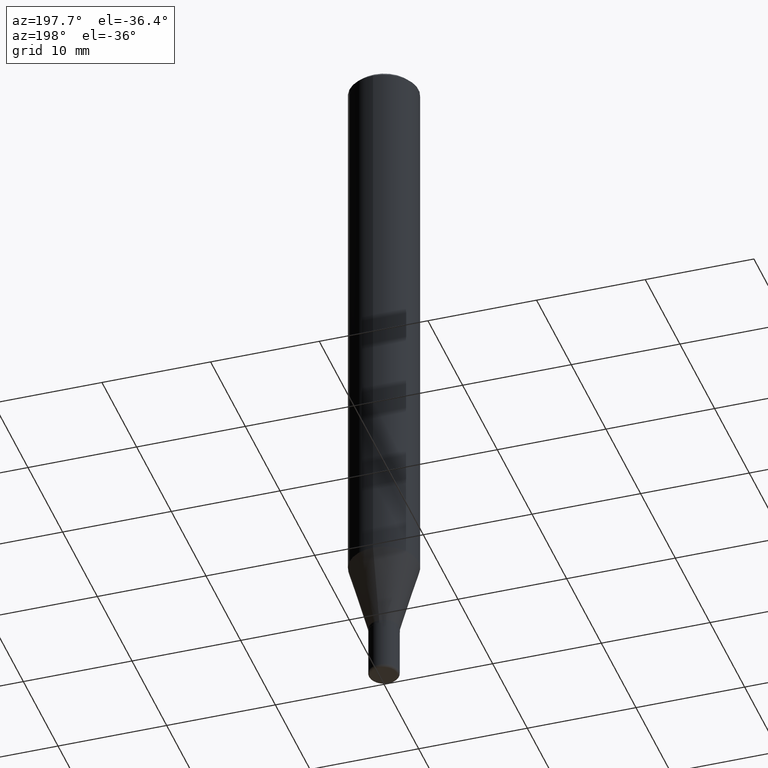
[diagram: clean part render]
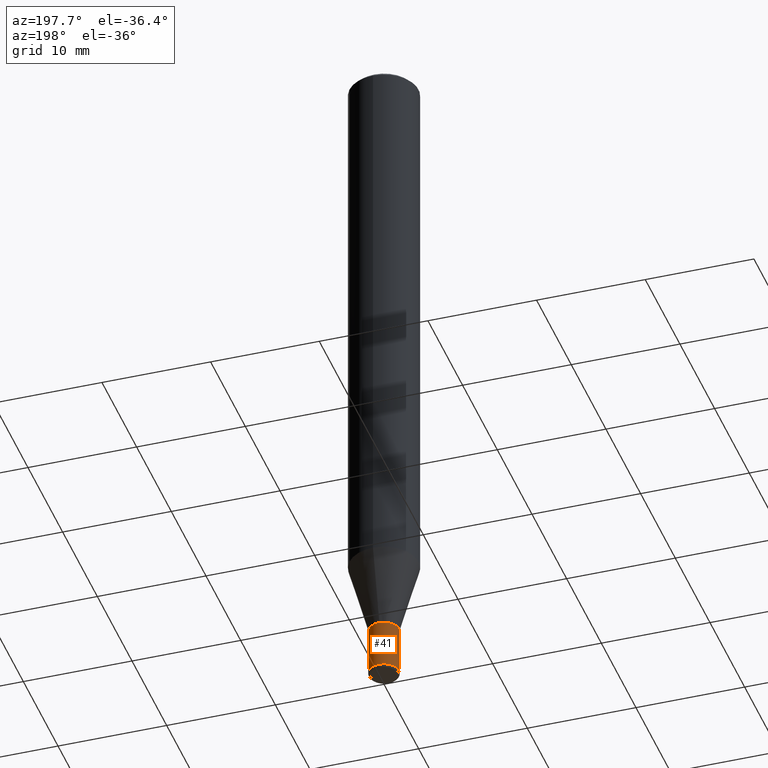
[diagram: same view with one face highlighted and labeled with its STEP entity id]
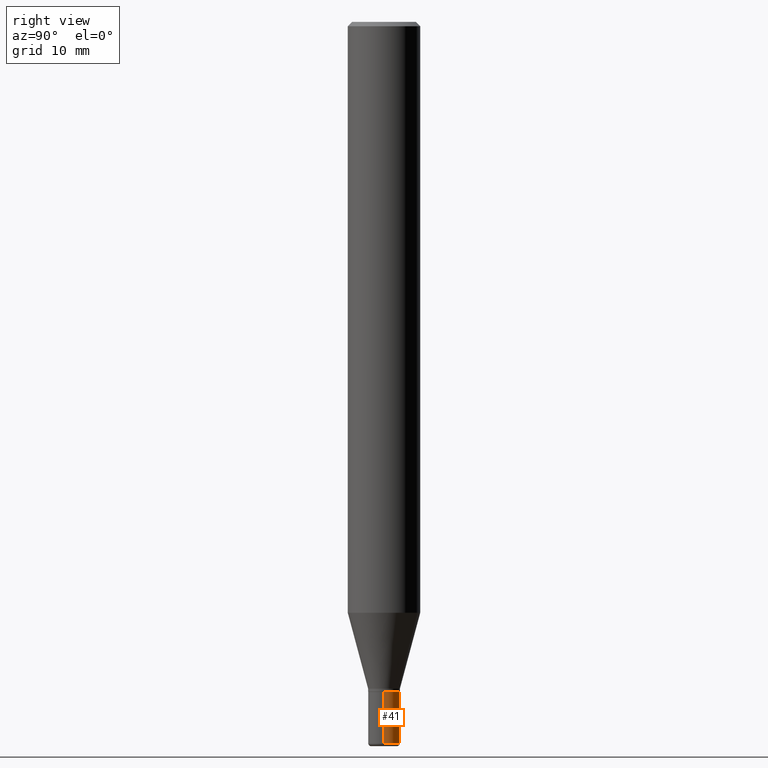
[diagram: same view with one face highlighted and labeled with its STEP entity id]
A machine part, auxiliary view. The second image highlights one B-rep face of the part: STEP entity #41.
A second angle (right view) of the same face is appended — the face is thin or edge-on in the first view.
In plain terms, the highlighted cylindrical surface (edge-blend (fillet) strip) has radius 1.3894 mm, axis along (-0, 0, 1).
Its self-contained STEP definition (entity closure, byte-faithful):
#28 = CYLINDRICAL_SURFACE ( 'NONE', #331, 0.05470000000000004026 ) ;
#29 = DIRECTION ( 'NONE',  ( 1.000000000000000000, -6.982962677686284854E-15, 0.000000000000000000 ) ) ;
#41 = ADVANCED_FACE ( 'NONE', ( #276 ), #28, .T. ) ;
#107 = CARTESIAN_POINT ( 'NONE',  ( 0.05470000000000008189, -9.075756592188872474E-15, -2.489999999999999769 ) ) ;
#114 = EDGE_CURVE ( 'NONE', #301, #347, #260, .T. ) ;
#167 = LINE ( 'NONE', #251, #324 ) ;
#182 = ORIENTED_EDGE ( 'NONE', *, *, #434, .T. ) ;
#188 = EDGE_LOOP ( 'NONE', ( #328, #182, #446, #250 ) ) ;
#203 = CARTESIAN_POINT ( 'NONE',  ( 0.000000000000000000, 0.000000000000000000, 0.000000000000000000 ) ) ;
#204 = CARTESIAN_POINT ( 'NONE',  ( 0.05469999999999999862, -8.454272913874791960E-15, -2.312000000000000277 ) ) ;
#240 = DIRECTION ( 'NONE',  ( 1.000000000000000000, -6.982962677686266711E-15, 4.876176775795936353E-29 ) ) ;
#244 = EDGE_CURVE ( 'NONE', #301, #330, #475, .T. ) ;
#250 = ORIENTED_EDGE ( 'NONE', *, *, #114, .F. ) ;
#251 = CARTESIAN_POINT ( 'NONE',  ( -0.05470000000000004026, 3.886668764607750877E-16, -2.690657494369435810E-30 ) ) ;
#260 = LINE ( 'NONE', #416, #393 ) ;
#266 = DIRECTION ( 'NONE',  ( -2.445468806185136877E-29, 3.491481338843145188E-15, 1.000000000000000000 ) ) ;
#276 = FACE_OUTER_BOUND ( 'NONE', #188, .T. ) ;
#301 = VERTEX_POINT ( 'NONE', #107 ) ;
#313 = VERTEX_POINT ( 'NONE', #371 ) ;
#314 = DIRECTION ( 'NONE',  ( -2.445468806185136597E-29, 3.491481338843145583E-15, 1.000000000000000000 ) ) ;
#319 = AXIS2_PLACEMENT_3D ( 'NONE', #346, #335, #29 ) ;
#324 = VECTOR ( 'NONE', #368, 39.37007874015748143 ) ;
#326 = EDGE_CURVE ( 'NONE', #347, #313, #497, .T. ) ;
#328 = ORIENTED_EDGE ( 'NONE', *, *, #244, .T. ) ;
#330 = VERTEX_POINT ( 'NONE', #448 ) ;
#331 = AXIS2_PLACEMENT_3D ( 'NONE', #203, #314, #240 ) ;
#335 = DIRECTION ( 'NONE',  ( -2.445468806185136597E-29, 3.491481338843145583E-15, 1.000000000000000000 ) ) ;
#344 = DIRECTION ( 'NONE',  ( -2.445468806185136597E-29, 3.491481338843145583E-15, 1.000000000000000000 ) ) ;
#346 = CARTESIAN_POINT ( 'NONE',  ( 6.089217327400989947E-29, -8.693788533719431716E-15, -2.489999999999999769 ) ) ;
#347 = VERTEX_POINT ( 'NONE', #204 ) ;
#368 = DIRECTION ( 'NONE',  ( -2.445468806185136877E-29, 3.491481338843145188E-15, 1.000000000000000000 ) ) ;
#371 = CARTESIAN_POINT ( 'NONE',  ( -0.05469999999999999862, -7.994379818101616864E-15, -2.312000000000000277 ) ) ;
#393 = VECTOR ( 'NONE', #266, 39.37007874015748143 ) ;
#416 = CARTESIAN_POINT ( 'NONE',  ( 0.05470000000000004026, -3.819680584694390817E-16, 2.667268696360379056E-30 ) ) ;
#431 = AXIS2_PLACEMENT_3D ( 'NONE', #493, #344, #487 ) ;
#434 = EDGE_CURVE ( 'NONE', #330, #313, #167, .T. ) ;
#446 = ORIENTED_EDGE ( 'NONE', *, *, #326, .F. ) ;
#448 = CARTESIAN_POINT ( 'NONE',  ( -0.05470000000000009577, -7.994379818101615286E-15, -2.489999999999999769 ) ) ;
#475 = CIRCLE ( 'NONE', #319, 0.05470000000000008189 ) ;
#487 = DIRECTION ( 'NONE',  ( 1.000000000000000000, -6.982962677686260400E-15, 0.000000000000000000 ) ) ;
#493 = CARTESIAN_POINT ( 'NONE',  ( 5.653923879900035579E-29, -8.072304855405352780E-15, -2.312000000000000277 ) ) ;
#497 = CIRCLE ( 'NONE', #431, 0.05469999999999999862 ) ;